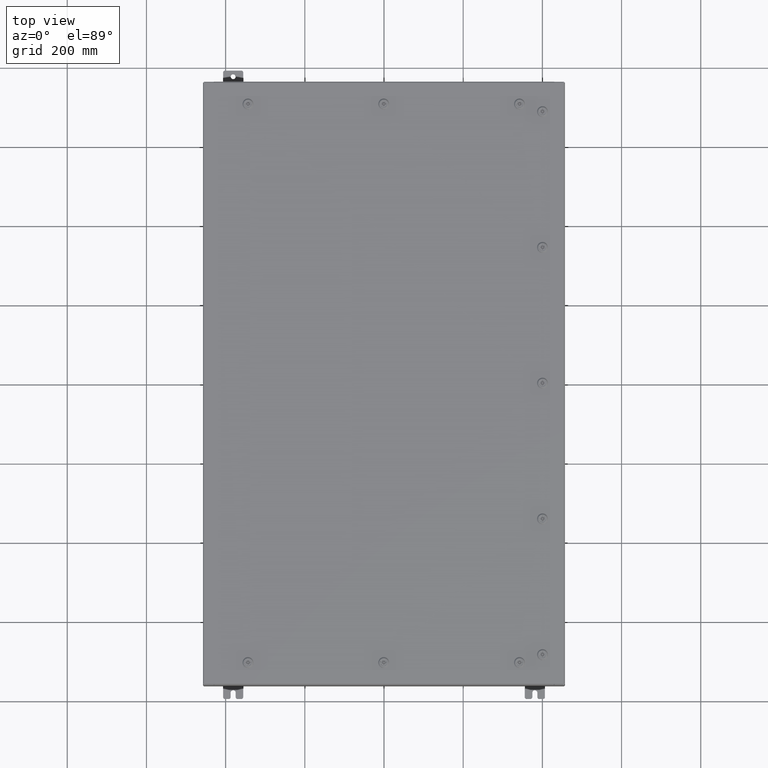
[diagram: clean part render]
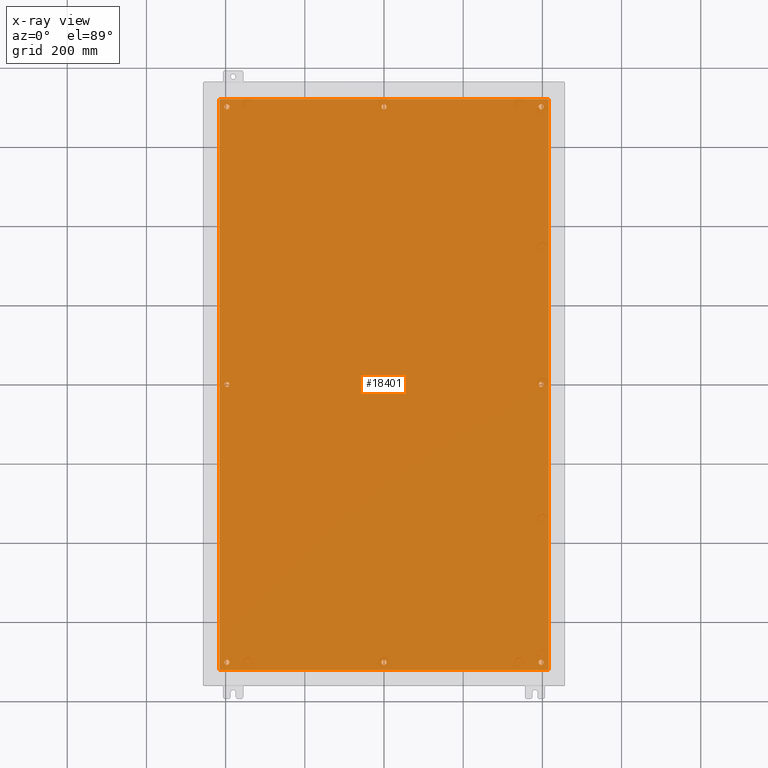
[diagram: x-ray — body ghosted, one internal face saturated and labeled with its STEP entity id]
A machine part, top view, then the same camera in x-ray: the body is ghosted and one INTERNAL B-rep face — a face not visible from any outside direction — is saturated and labeled: STEP entity #18401.
In plain terms, the highlighted planar face has unit normal (0, 0, -1).
Its self-contained STEP definition (entity closure, byte-faithful):
#374 = CARTESIAN_POINT ( 'NONE',  ( 15.87500000000000700, 2.997136362123522700E-015, -0.1039999999999999800 ) ) ;
#606 = VERTEX_POINT ( 'NONE', #4413 ) ;
#1592 = DIRECTION ( 'NONE',  ( -1.000000000000000000, 0.0000000000000000000, 0.0000000000000000000 ) ) ;
#2159 = CARTESIAN_POINT ( 'NONE',  ( 16.38299999999999900, 28.38299999999998800, -0.1040000000000009100 ) ) ;
#2877 = VERTEX_POINT ( 'NONE', #33010 ) ;
#3067 = CARTESIAN_POINT ( 'NONE',  ( 15.87500000000000700, -27.62500000000000000, -0.1039999999999999800 ) ) ;
#3161 = DIRECTION ( 'NONE',  ( 0.0000000000000000000, 0.0000000000000000000, -1.000000000000000000 ) ) ;
#3520 = ORIENTED_EDGE ( 'NONE', *, *, #4535, .T. ) ;
#3823 = DIRECTION ( 'NONE',  ( -0.0000000000000000000, -0.0000000000000000000, 1.000000000000000000 ) ) ;
#4388 = DIRECTION ( 'NONE',  ( -0.0000000000000000000, -0.0000000000000000000, 1.000000000000000000 ) ) ;
#4413 = CARTESIAN_POINT ( 'NONE',  ( -15.37500000000000900, 27.62500000000000000, -0.1039999999999999800 ) ) ;
#4535 = EDGE_CURVE ( 'NONE', #19910, #15291, #23532, .T. ) ;
#4822 = EDGE_CURVE ( 'NONE', #52915, #2877, #59501, .T. ) ;
#5191 = CARTESIAN_POINT ( 'NONE',  ( 0.0000000000000000000, -27.62500000000000000, -0.1039999999999999800 ) ) ;
#5640 = ORIENTED_EDGE ( 'NONE', *, *, #4822, .T. ) ;
#6010 = VECTOR ( 'NONE', #40079, 39.37007874015748100 ) ;
#6432 = CARTESIAN_POINT ( 'NONE',  ( -16.38299999999999900, 28.38299999999998800, -0.1040000000000009100 ) ) ;
#7356 = AXIS2_PLACEMENT_3D ( 'NONE', #35821, #3823, #41216 ) ;
#7618 = EDGE_CURVE ( 'NONE', #24141, #36114, #25778, .T. ) ;
#7948 = DIRECTION ( 'NONE',  ( -0.0000000000000000000, -0.0000000000000000000, 1.000000000000000000 ) ) ;
#8886 = FACE_OUTER_BOUND ( 'NONE', #14143, .T. ) ;
#9082 = CARTESIAN_POINT ( 'NONE',  ( 15.37500000000000500, 3.027752532102206500E-015, -0.1039999999999999800 ) ) ;
#9708 = AXIS2_PLACEMENT_3D ( 'NONE', #42643, #10593, #47998 ) ;
#9974 = CARTESIAN_POINT ( 'NONE',  ( -15.87500000000000700, -7.992687152332741600E-016, -0.1039999999999999800 ) ) ;
#10416 = EDGE_LOOP ( 'NONE', ( #3520, #33717 ) ) ;
#10495 = AXIS2_PLACEMENT_3D ( 'NONE', #46316, #14253, #51677 ) ;
#10526 = DIRECTION ( 'NONE',  ( -1.000000000000000000, 0.0000000000000000000, 0.0000000000000000000 ) ) ;
#10534 = FACE_BOUND ( 'NONE', #49618, .T. ) ;
#10593 = DIRECTION ( 'NONE',  ( -0.0000000000000000000, -0.0000000000000000000, 1.000000000000000000 ) ) ;
#10771 = CARTESIAN_POINT ( 'NONE',  ( -15.62500000000000900, -27.62500000000000000, -0.1039999999999999800 ) ) ;
#11028 = ORIENTED_EDGE ( 'NONE', *, *, #64338, .F. ) ;
#11227 = VERTEX_POINT ( 'NONE', #38665 ) ;
#11373 = ORIENTED_EDGE ( 'NONE', *, *, #17184, .F. ) ;
#11389 = CARTESIAN_POINT ( 'NONE',  ( -16.38299999999999900, 28.38299999999998800, -0.1040000000000009100 ) ) ;
#11626 = ORIENTED_EDGE ( 'NONE', *, *, #27835, .T. ) ;
#11757 = CARTESIAN_POINT ( 'NONE',  ( 0.2500000000000011700, -27.62500000000000000, -0.1039999999999999800 ) ) ;
#12686 = DIRECTION ( 'NONE',  ( -1.000000000000000000, -0.0000000000000000000, -0.0000000000000000000 ) ) ;
#13228 = CIRCLE ( 'NONE', #68719, 0.2499999999999987000 ) ;
#13915 = EDGE_CURVE ( 'NONE', #2877, #52915, #29248, .T. ) ;
#13948 = DIRECTION ( 'NONE',  ( -0.0000000000000000000, -0.0000000000000000000, 1.000000000000000000 ) ) ;
#13953 = AXIS2_PLACEMENT_3D ( 'NONE', #61589, #29531, #66962 ) ;
#14143 = EDGE_LOOP ( 'NONE', ( #11028, #64426, #11373, #23292 ) ) ;
#14253 = DIRECTION ( 'NONE',  ( -0.0000000000000000000, -0.0000000000000000000, 1.000000000000000000 ) ) ;
#14719 = CARTESIAN_POINT ( 'NONE',  ( -15.62500000000001100, 27.62500000000000000, -0.1039999999999999800 ) ) ;
#15291 = VERTEX_POINT ( 'NONE', #56546 ) ;
#15805 = EDGE_CURVE ( 'NONE', #33471, #59771, #13228, .T. ) ;
#16118 = DIRECTION ( 'NONE',  ( -1.000000000000000000, 0.0000000000000000000, 0.0000000000000000000 ) ) ;
#16193 = CIRCLE ( 'NONE', #47107, 0.2500000000000011700 ) ;
#16200 = AXIS2_PLACEMENT_3D ( 'NONE', #24820, #62267, #30194 ) ;
#16942 = CARTESIAN_POINT ( 'NONE',  ( 16.38299999999999900, -28.38300000000000600, -0.1040000000000009100 ) ) ;
#17064 = AXIS2_PLACEMENT_3D ( 'NONE', #50690, #18651, #56077 ) ;
#17184 = EDGE_CURVE ( 'NONE', #65100, #55531, #31523, .T. ) ;
#17675 = CARTESIAN_POINT ( 'NONE',  ( 15.62500000000000900, -27.62500000000000000, -0.1039999999999999800 ) ) ;
#18272 = CARTESIAN_POINT ( 'NONE',  ( 16.50000000000000000, 28.38299999999999600, -0.1040000000000009400 ) ) ;
#18401 = ADVANCED_FACE ( 'NONE', ( #10534, #69101, #29783, #24746, #65806, #51523, #37309, #23088, #8886 ), #61608, .T. ) ;
#18543 = CARTESIAN_POINT ( 'NONE',  ( -16.50000000000000000, -28.38300000000000600, -0.1040000000000009400 ) ) ;
#18554 = ORIENTED_EDGE ( 'NONE', *, *, #55429, .T. ) ;
#18651 = DIRECTION ( 'NONE',  ( -0.0000000000000000000, -0.0000000000000000000, 1.000000000000000000 ) ) ;
#18693 = AXIS2_PLACEMENT_3D ( 'NONE', #14719, #52151, #20106 ) ;
#19692 = VECTOR ( 'NONE', #51788, 39.37007874015748100 ) ;
#19910 = VERTEX_POINT ( 'NONE', #21547 ) ;
#20106 = DIRECTION ( 'NONE',  ( -1.000000000000000000, 0.0000000000000000000, 0.0000000000000000000 ) ) ;
#21547 = CARTESIAN_POINT ( 'NONE',  ( 15.87500000000000700, 27.62500000000000000, -0.1039999999999999800 ) ) ;
#22974 = ORIENTED_EDGE ( 'NONE', *, *, #38641, .T. ) ;
#23059 = DIRECTION ( 'NONE',  ( -1.000000000000000000, 0.0000000000000000000, 0.0000000000000000000 ) ) ;
#23088 = FACE_BOUND ( 'NONE', #45126, .T. ) ;
#23292 = ORIENTED_EDGE ( 'NONE', *, *, #63908, .F. ) ;
#23532 = CIRCLE ( 'NONE', #49351, 0.2499999999999987000 ) ;
#23551 = LINE ( 'NONE', #18543, #6010 ) ;
#24141 = VERTEX_POINT ( 'NONE', #9974 ) ;
#24310 = DIRECTION ( 'NONE',  ( -0.0000000000000000000, -0.0000000000000000000, 1.000000000000000000 ) ) ;
#24746 = FACE_BOUND ( 'NONE', #54021, .T. ) ;
#24820 = CARTESIAN_POINT ( 'NONE',  ( 0.0000000000000000000, 27.62500000000000000, -0.1039999999999999800 ) ) ;
#24857 = CIRCLE ( 'NONE', #18693, 0.2500000000000008900 ) ;
#25017 = VERTEX_POINT ( 'NONE', #48454 ) ;
#25166 = CARTESIAN_POINT ( 'NONE',  ( 0.0000000000000000000, 27.62500000000000000, -0.1039999999999999800 ) ) ;
#25778 = CIRCLE ( 'NONE', #9708, 0.2500000000000008900 ) ;
#27017 = CARTESIAN_POINT ( 'NONE',  ( 0.2499999999999998600, 27.62500000000000000, -0.1039999999999999800 ) ) ;
#27275 = CIRCLE ( 'NONE', #27433, 0.2500000000000008900 ) ;
#27433 = AXIS2_PLACEMENT_3D ( 'NONE', #56375, #24310, #61746 ) ;
#27835 = EDGE_CURVE ( 'NONE', #36114, #24141, #27275, .T. ) ;
#28074 = CIRCLE ( 'NONE', #33572, 0.2500000000000008900 ) ;
#28679 = EDGE_CURVE ( 'NONE', #11227, #606, #56644, .T. ) ;
#29248 = CIRCLE ( 'NONE', #17064, 0.2499999999999987000 ) ;
#29531 = DIRECTION ( 'NONE',  ( -0.0000000000000000000, -0.0000000000000000000, 1.000000000000000000 ) ) ;
#29783 = FACE_BOUND ( 'NONE', #44550, .T. ) ;
#30194 = DIRECTION ( 'NONE',  ( -1.000000000000000000, 0.0000000000000000000, 0.0000000000000000000 ) ) ;
#30548 = DIRECTION ( 'NONE',  ( -1.000000000000000000, 0.0000000000000000000, 0.0000000000000000000 ) ) ;
#30854 = ORIENTED_EDGE ( 'NONE', *, *, #13915, .T. ) ;
#30916 = CIRCLE ( 'NONE', #13953, 0.2499999999999987000 ) ;
#31523 = LINE ( 'NONE', #18272, #45767 ) ;
#32501 = VERTEX_POINT ( 'NONE', #59447 ) ;
#33010 = CARTESIAN_POINT ( 'NONE',  ( 15.37500000000000900, -27.62500000000000000, -0.1039999999999999800 ) ) ;
#33119 = CARTESIAN_POINT ( 'NONE',  ( -15.87500000000000700, -27.62500000000000000, -0.1039999999999999800 ) ) ;
#33471 = VERTEX_POINT ( 'NONE', #39952 ) ;
#33572 = AXIS2_PLACEMENT_3D ( 'NONE', #39969, #7948, #45353 ) ;
#33576 = DIRECTION ( 'NONE',  ( -0.0000000000000000000, -0.0000000000000000000, 1.000000000000000000 ) ) ;
#33717 = ORIENTED_EDGE ( 'NONE', *, *, #66414, .T. ) ;
#33959 = LINE ( 'NONE', #35676, #19692 ) ;
#34935 = ORIENTED_EDGE ( 'NONE', *, *, #28679, .T. ) ;
#35170 = CARTESIAN_POINT ( 'NONE',  ( 0.0000000000000000000, 0.0000000000000000000, -0.1039999999999999800 ) ) ;
#35676 = CARTESIAN_POINT ( 'NONE',  ( 16.38299999999999900, -28.38300000000000600, -0.1040000000000009100 ) ) ;
#35821 = CARTESIAN_POINT ( 'NONE',  ( 0.0000000000000000000, -27.62500000000000000, -0.1039999999999999800 ) ) ;
#36080 = ORIENTED_EDGE ( 'NONE', *, *, #7618, .T. ) ;
#36114 = VERTEX_POINT ( 'NONE', #37040 ) ;
#36236 = ORIENTED_EDGE ( 'NONE', *, *, #44671, .T. ) ;
#36345 = EDGE_CURVE ( 'NONE', #55531, #32501, #39357, .T. ) ;
#36388 = CARTESIAN_POINT ( 'NONE',  ( -15.62500000000001100, 27.62500000000000000, -0.1039999999999999800 ) ) ;
#37040 = CARTESIAN_POINT ( 'NONE',  ( -15.37500000000000500, -8.298848852119578500E-016, -0.1039999999999999800 ) ) ;
#37309 = FACE_BOUND ( 'NONE', #10416, .T. ) ;
#38641 = EDGE_CURVE ( 'NONE', #60289, #60449, #16193, .T. ) ;
#38665 = CARTESIAN_POINT ( 'NONE',  ( -15.87500000000001100, 27.62500000000000000, -0.1039999999999999800 ) ) ;
#39357 = LINE ( 'NONE', #6432, #67794 ) ;
#39952 = CARTESIAN_POINT ( 'NONE',  ( -15.37500000000000900, -27.62500000000000000, -0.1039999999999999800 ) ) ;
#39969 = CARTESIAN_POINT ( 'NONE',  ( 15.62500000000000500, 2.997136362123522700E-015, -0.1039999999999999800 ) ) ;
#40079 = DIRECTION ( 'NONE',  ( 1.000000000000000000, -0.0000000000000000000, -0.0000000000000000000 ) ) ;
#40219 = ORIENTED_EDGE ( 'NONE', *, *, #50586, .T. ) ;
#40228 = CIRCLE ( 'NONE', #7356, 0.2500000000000011700 ) ;
#40372 = ORIENTED_EDGE ( 'NONE', *, *, #55139, .T. ) ;
#40561 = DIRECTION ( 'NONE',  ( -1.000000000000000000, 0.0000000000000000000, -0.0000000000000000000 ) ) ;
#40861 = AXIS2_PLACEMENT_3D ( 'NONE', #17675, #55109, #23059 ) ;
#41216 = DIRECTION ( 'NONE',  ( -1.000000000000000000, 0.0000000000000000000, 0.0000000000000000000 ) ) ;
#41779 = DIRECTION ( 'NONE',  ( -1.000000000000000000, 0.0000000000000000000, 0.0000000000000000000 ) ) ;
#42580 = DIRECTION ( 'NONE',  ( -0.0000000000000000000, -0.0000000000000000000, 1.000000000000000000 ) ) ;
#42643 = CARTESIAN_POINT ( 'NONE',  ( -15.62500000000000500, -8.298848852119578500E-016, -0.1039999999999999800 ) ) ;
#42929 = CIRCLE ( 'NONE', #16200, 0.2499999999999998600 ) ;
#43824 = DIRECTION ( 'NONE',  ( 0.0000000000000000000, -1.000000000000000000, 0.0000000000000000000 ) ) ;
#44539 = ORIENTED_EDGE ( 'NONE', *, *, #15805, .T. ) ;
#44550 = EDGE_LOOP ( 'NONE', ( #40219, #53227 ) ) ;
#44578 = EDGE_LOOP ( 'NONE', ( #5640, #30854 ) ) ;
#44671 = EDGE_CURVE ( 'NONE', #60449, #60289, #40228, .T. ) ;
#45126 = EDGE_LOOP ( 'NONE', ( #50558, #34935 ) ) ;
#45353 = DIRECTION ( 'NONE',  ( -1.000000000000000000, 0.0000000000000000000, 0.0000000000000000000 ) ) ;
#45767 = VECTOR ( 'NONE', #12686, 39.37007874015748100 ) ;
#46007 = CARTESIAN_POINT ( 'NONE',  ( 15.62500000000000900, 27.62500000000000000, -0.1039999999999999800 ) ) ;
#46316 = CARTESIAN_POINT ( 'NONE',  ( 15.62500000000000500, 2.997136362123522700E-015, -0.1039999999999999800 ) ) ;
#47107 = AXIS2_PLACEMENT_3D ( 'NONE', #5191, #42580, #10526 ) ;
#47998 = DIRECTION ( 'NONE',  ( -1.000000000000000000, 0.0000000000000000000, 0.0000000000000000000 ) ) ;
#48170 = DIRECTION ( 'NONE',  ( -0.0000000000000000000, -0.0000000000000000000, 1.000000000000000000 ) ) ;
#48450 = CARTESIAN_POINT ( 'NONE',  ( -0.2500000000000011700, -27.62500000000000000, -0.1039999999999999800 ) ) ;
#48454 = CARTESIAN_POINT ( 'NONE',  ( -0.2499999999999998600, 27.62500000000000000, -0.1039999999999999800 ) ) ;
#49351 = AXIS2_PLACEMENT_3D ( 'NONE', #46007, #13948, #51369 ) ;
#49618 = EDGE_LOOP ( 'NONE', ( #36236, #22974 ) ) ;
#49860 = EDGE_LOOP ( 'NONE', ( #44539, #18554 ) ) ;
#50371 = VERTEX_POINT ( 'NONE', #374 ) ;
#50445 = CIRCLE ( 'NONE', #55701, 0.2499999999999987000 ) ;
#50558 = ORIENTED_EDGE ( 'NONE', *, *, #61984, .T. ) ;
#50586 = EDGE_CURVE ( 'NONE', #50371, #59361, #28074, .T. ) ;
#50690 = CARTESIAN_POINT ( 'NONE',  ( 15.62500000000000900, -27.62500000000000000, -0.1039999999999999800 ) ) ;
#50860 = AXIS2_PLACEMENT_3D ( 'NONE', #25166, #62614, #30548 ) ;
#51369 = DIRECTION ( 'NONE',  ( -1.000000000000000000, 0.0000000000000000000, 0.0000000000000000000 ) ) ;
#51523 = FACE_BOUND ( 'NONE', #44578, .T. ) ;
#51677 = DIRECTION ( 'NONE',  ( -1.000000000000000000, 0.0000000000000000000, 0.0000000000000000000 ) ) ;
#51788 = DIRECTION ( 'NONE',  ( 0.0000000000000000000, 1.000000000000000000, 0.0000000000000000000 ) ) ;
#52151 = DIRECTION ( 'NONE',  ( -0.0000000000000000000, -0.0000000000000000000, 1.000000000000000000 ) ) ;
#52915 = VERTEX_POINT ( 'NONE', #3067 ) ;
#53227 = ORIENTED_EDGE ( 'NONE', *, *, #58186, .T. ) ;
#54021 = EDGE_LOOP ( 'NONE', ( #11626, #36080 ) ) ;
#54075 = VERTEX_POINT ( 'NONE', #27017 ) ;
#55109 = DIRECTION ( 'NONE',  ( -0.0000000000000000000, -0.0000000000000000000, 1.000000000000000000 ) ) ;
#55139 = EDGE_CURVE ( 'NONE', #25017, #54075, #42929, .T. ) ;
#55429 = EDGE_CURVE ( 'NONE', #59771, #33471, #50445, .T. ) ;
#55531 = VERTEX_POINT ( 'NONE', #11389 ) ;
#55701 = AXIS2_PLACEMENT_3D ( 'NONE', #10771, #48170, #16118 ) ;
#56077 = DIRECTION ( 'NONE',  ( -1.000000000000000000, 0.0000000000000000000, 0.0000000000000000000 ) ) ;
#56375 = CARTESIAN_POINT ( 'NONE',  ( -15.62500000000000500, -8.298848852119578500E-016, -0.1039999999999999800 ) ) ;
#56546 = CARTESIAN_POINT ( 'NONE',  ( 15.37500000000000900, 27.62500000000000000, -0.1039999999999999800 ) ) ;
#56644 = CIRCLE ( 'NONE', #67818, 0.2500000000000008900 ) ;
#56947 = CIRCLE ( 'NONE', #10495, 0.2500000000000008900 ) ;
#57207 = VERTEX_POINT ( 'NONE', #16942 ) ;
#57902 = EDGE_LOOP ( 'NONE', ( #65973, #40372 ) ) ;
#58186 = EDGE_CURVE ( 'NONE', #59361, #50371, #56947, .T. ) ;
#58561 = CIRCLE ( 'NONE', #50860, 0.2499999999999998600 ) ;
#58985 = EDGE_CURVE ( 'NONE', #54075, #25017, #58561, .T. ) ;
#59361 = VERTEX_POINT ( 'NONE', #9082 ) ;
#59447 = CARTESIAN_POINT ( 'NONE',  ( -16.38299999999999900, -28.38300000000000600, -0.1040000000000009400 ) ) ;
#59501 = CIRCLE ( 'NONE', #40861, 0.2499999999999987000 ) ;
#59771 = VERTEX_POINT ( 'NONE', #33119 ) ;
#60289 = VERTEX_POINT ( 'NONE', #48450 ) ;
#60449 = VERTEX_POINT ( 'NONE', #11757 ) ;
#61589 = CARTESIAN_POINT ( 'NONE',  ( 15.62500000000000900, 27.62500000000000000, -0.1039999999999999800 ) ) ;
#61608 = PLANE ( 'NONE',  #65274 ) ;
#61746 = DIRECTION ( 'NONE',  ( -1.000000000000000000, 0.0000000000000000000, 0.0000000000000000000 ) ) ;
#61984 = EDGE_CURVE ( 'NONE', #606, #11227, #24857, .T. ) ;
#62267 = DIRECTION ( 'NONE',  ( -0.0000000000000000000, -0.0000000000000000000, 1.000000000000000000 ) ) ;
#62614 = DIRECTION ( 'NONE',  ( -0.0000000000000000000, -0.0000000000000000000, 1.000000000000000000 ) ) ;
#63908 = EDGE_CURVE ( 'NONE', #57207, #65100, #33959, .T. ) ;
#64338 = EDGE_CURVE ( 'NONE', #32501, #57207, #23551, .T. ) ;
#64426 = ORIENTED_EDGE ( 'NONE', *, *, #36345, .F. ) ;
#65100 = VERTEX_POINT ( 'NONE', #2159 ) ;
#65274 = AXIS2_PLACEMENT_3D ( 'NONE', #35170, #3161, #40561 ) ;
#65645 = CARTESIAN_POINT ( 'NONE',  ( -15.62500000000000900, -27.62500000000000000, -0.1039999999999999800 ) ) ;
#65806 = FACE_BOUND ( 'NONE', #49860, .T. ) ;
#65973 = ORIENTED_EDGE ( 'NONE', *, *, #58985, .T. ) ;
#66414 = EDGE_CURVE ( 'NONE', #15291, #19910, #30916, .T. ) ;
#66962 = DIRECTION ( 'NONE',  ( -1.000000000000000000, 0.0000000000000000000, 0.0000000000000000000 ) ) ;
#67794 = VECTOR ( 'NONE', #43824, 39.37007874015748100 ) ;
#67818 = AXIS2_PLACEMENT_3D ( 'NONE', #36388, #4388, #41779 ) ;
#68719 = AXIS2_PLACEMENT_3D ( 'NONE', #65645, #33576, #1592 ) ;
#69101 = FACE_BOUND ( 'NONE', #57902, .T. ) ;